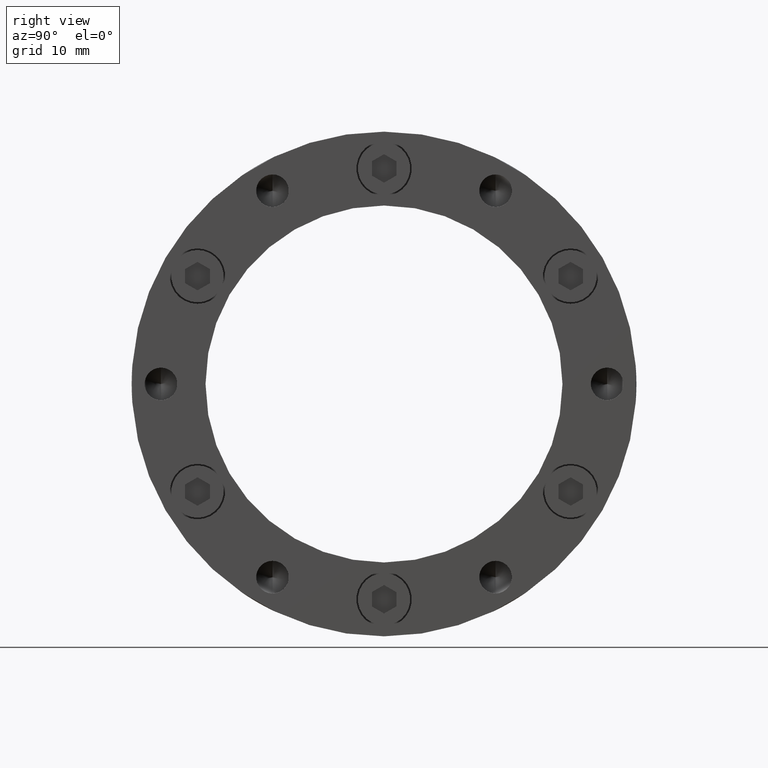
[diagram: clean part render]
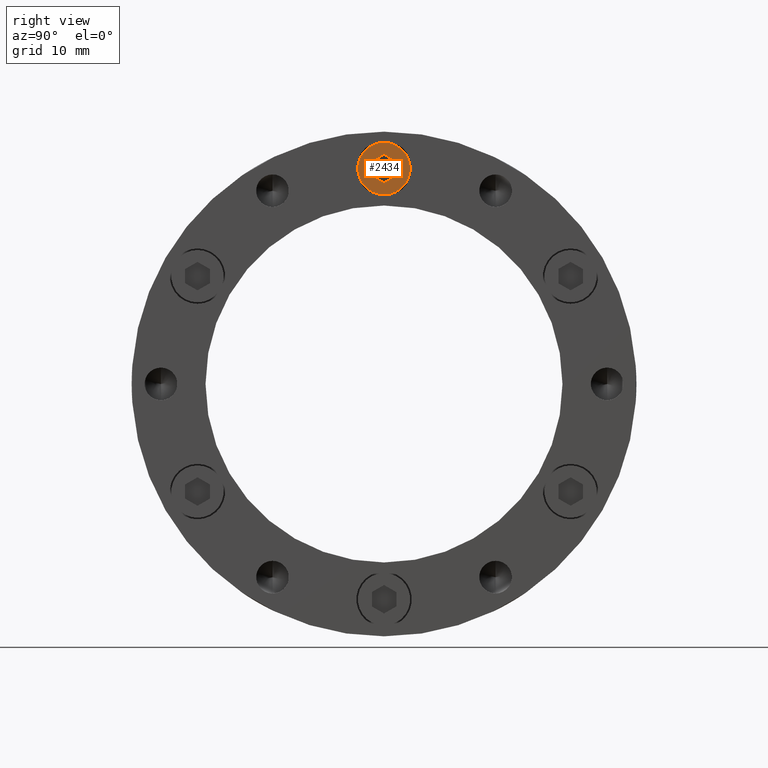
[diagram: same view with one face highlighted and labeled with its STEP entity id]
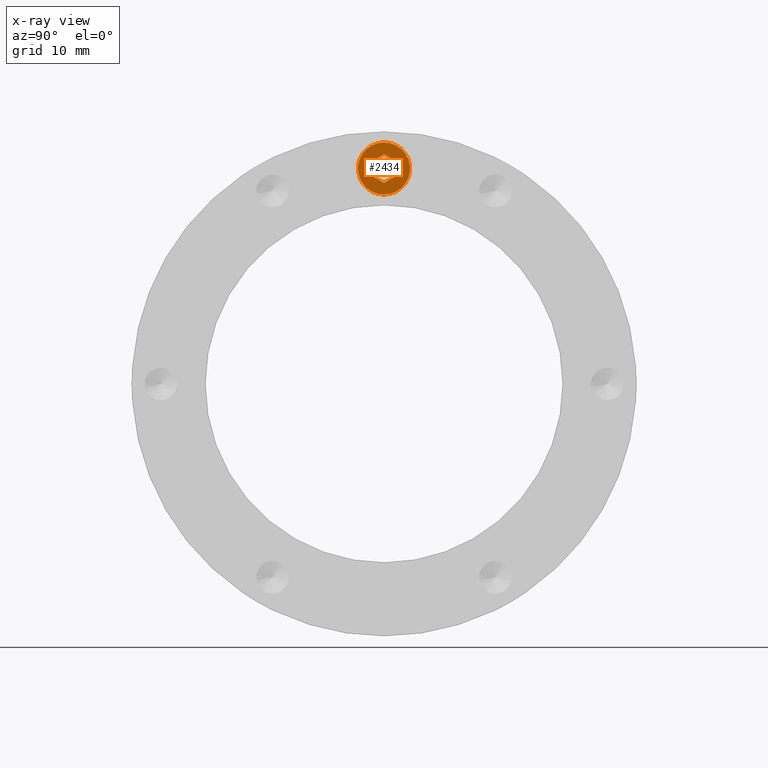
[diagram: x-ray of the same camera — body ghosted, the highlighted face saturated]
A machine part, right view. The second image highlights one B-rep face of the part: STEP entity #2434.
The next image is the same camera in x-ray: the body ghosted, the highlighted face saturated — about 0% of this face is hidden behind the body in this view.
In plain terms, the highlighted planar face has unit normal (1, 0, 0).
Its self-contained STEP definition (entity closure, byte-faithful):
#56 = ORIENTED_EDGE ( 'NONE', *, *, #2995, .F. ) ;
#97 = ORIENTED_EDGE ( 'NONE', *, *, #2938, .F. ) ;
#99 = ORIENTED_EDGE ( 'NONE', *, *, #3000, .F. ) ;
#140 = ORIENTED_EDGE ( 'NONE', *, *, #3002, .T. ) ;
#144 = ORIENTED_EDGE ( 'NONE', *, *, #2998, .T. ) ;
#152 = ORIENTED_EDGE ( 'NONE', *, *, #2991, .F. ) ;
#162 = ORIENTED_EDGE ( 'NONE', *, *, #2972, .F. ) ;
#165 = ORIENTED_EDGE ( 'NONE', *, *, #3004, .F. ) ;
#509 = CARTESIAN_POINT ( 'NONE',  ( 0.0000000000000000000, 5.000000000000000000, 0.0000000000000000000 ) ) ;
#512 = PLANE ( 'NONE',  #975 ) ;
#514 = DIRECTION ( 'NONE',  ( 0.0000000000000000000, 1.000000000000000000, 0.0000000000000000000 ) ) ;
#515 = DIRECTION ( 'NONE',  ( 0.0000000000000000000, -0.0000000000000000000, 1.000000000000000000 ) ) ;
#840 = EDGE_LOOP ( 'NONE', ( #152, #56, #165, #162, #97, #99 ) ) ;
#847 = EDGE_LOOP ( 'NONE', ( #144, #140 ) ) ;
#975 = AXIS2_PLACEMENT_3D ( 'NONE', #509, #514, #515 ) ;
#1086 = AXIS2_PLACEMENT_3D ( 'NONE', #1944, #1945, #1946 ) ;
#1087 = AXIS2_PLACEMENT_3D ( 'NONE', #1952, #1953, #1955 ) ;
#1737 = CARTESIAN_POINT ( 'NONE',  ( -2.000000000000000400, 5.000000000000000000, -1.154700538379251700 ) ) ;
#1772 = DIRECTION ( 'NONE',  ( 1.877893248421448800E-016, 0.0000000000000000000, 1.000000000000000000 ) ) ;
#1900 = DIRECTION ( 'NONE',  ( 0.8660254037844388200, 0.0000000000000000000, 0.4999999999999997200 ) ) ;
#1902 = CARTESIAN_POINT ( 'NONE',  ( -2.000000000000000000, 5.000000000000000000, 1.154700538379252100 ) ) ;
#1919 = DIRECTION ( 'NONE',  ( -0.8660254037844386000, 0.0000000000000000000, -0.5000000000000000000 ) ) ;
#1930 = CARTESIAN_POINT ( 'NONE',  ( 2.000000000000000000, 5.000000000000000000, -1.154700538379251700 ) ) ;
#1935 = DIRECTION ( 'NONE',  ( 0.0000000000000000000, 0.0000000000000000000, -1.000000000000000000 ) ) ;
#1936 = CARTESIAN_POINT ( 'NONE',  ( 2.000000000000000000, 5.000000000000000000, 1.154700538379251700 ) ) ;
#1942 = CARTESIAN_POINT ( 'NONE',  ( -2.121080424092026700E-016, 5.000000000000000000, -2.309401076758503400 ) ) ;
#1943 = DIRECTION ( 'NONE',  ( -0.8660254037844387100, 0.0000000000000000000, 0.4999999999999999400 ) ) ;
#1944 = CARTESIAN_POINT ( 'NONE',  ( 0.0000000000000000000, 5.000000000000000000, 0.0000000000000000000 ) ) ;
#1945 = DIRECTION ( 'NONE',  ( 0.0000000000000000000, 1.000000000000000000, 0.0000000000000000000 ) ) ;
#1946 = DIRECTION ( 'NONE',  ( 0.0000000000000000000, 0.0000000000000000000, 1.000000000000000000 ) ) ;
#1947 = DIRECTION ( 'NONE',  ( 0.8660254037844387100, 0.0000000000000000000, -0.4999999999999998900 ) ) ;
#1948 = CARTESIAN_POINT ( 'NONE',  ( -2.000000000000000000, 5.000000000000000000, 1.154700538379252100 ) ) ;
#1949 = CARTESIAN_POINT ( 'NONE',  ( -2.000000000000000400, 5.000000000000000000, -1.154700538379251700 ) ) ;
#1950 = CARTESIAN_POINT ( 'NONE',  ( 1.953255819227850700E-016, 5.000000000000000000, 2.309401076758502900 ) ) ;
#1952 = CARTESIAN_POINT ( 'NONE',  ( 0.0000000000000000000, 5.000000000000000000, 0.0000000000000000000 ) ) ;
#1953 = DIRECTION ( 'NONE',  ( 0.0000000000000000000, 1.000000000000000000, 0.0000000000000000000 ) ) ;
#1955 = DIRECTION ( 'NONE',  ( 0.0000000000000000000, 0.0000000000000000000, 1.000000000000000000 ) ) ;
#1962 = CARTESIAN_POINT ( 'NONE',  ( 2.000000000000000000, 5.000000000000000000, 1.154700538379251700 ) ) ;
#1964 = CARTESIAN_POINT ( 'NONE',  ( 1.953255819227850700E-016, 5.000000000000000000, 2.309401076758502900 ) ) ;
#1968 = CARTESIAN_POINT ( 'NONE',  ( -4.336808689942017700E-016, 5.000000000000000000, -2.309401076758503400 ) ) ;
#1969 = CARTESIAN_POINT ( 'NONE',  ( 2.000000000000000000, 5.000000000000000000, -1.154700538379251700 ) ) ;
#1971 = CARTESIAN_POINT ( 'NONE',  ( 0.0000000000000000000, 5.000000000000000000, -4.250000000000000000 ) ) ;
#1973 = CARTESIAN_POINT ( 'NONE',  ( 5.204748896376250700E-016, 5.000000000000000000, 4.250000000000000000 ) ) ;
#2434 = ADVANCED_FACE ( 'NONE', ( #2672, #2681 ), #512, .T. ) ;
#2672 = FACE_BOUND ( 'NONE', #840, .T. ) ;
#2681 = FACE_OUTER_BOUND ( 'NONE', #847, .T. ) ;
#2938 = EDGE_CURVE ( 'NONE', #3037, #3024, #3879, .T. ) ;
#2972 = EDGE_CURVE ( 'NONE', #3024, #3042, #3896, .T. ) ;
#2991 = EDGE_CURVE ( 'NONE', #3048, #3046, #3916, .T. ) ;
#2995 = EDGE_CURVE ( 'NONE', #3039, #3048, #3918, .T. ) ;
#2998 = EDGE_CURVE ( 'NONE', #3050, #3052, #3922, .T. ) ;
#3000 = EDGE_CURVE ( 'NONE', #3046, #3037, #3923, .T. ) ;
#3002 = EDGE_CURVE ( 'NONE', #3052, #3050, #3926, .T. ) ;
#3004 = EDGE_CURVE ( 'NONE', #3042, #3039, #3925, .T. ) ;
#3024 = VERTEX_POINT ( 'NONE', #1948 ) ;
#3037 = VERTEX_POINT ( 'NONE', #1949 ) ;
#3039 = VERTEX_POINT ( 'NONE', #1962 ) ;
#3042 = VERTEX_POINT ( 'NONE', #1964 ) ;
#3046 = VERTEX_POINT ( 'NONE', #1968 ) ;
#3048 = VERTEX_POINT ( 'NONE', #1969 ) ;
#3050 = VERTEX_POINT ( 'NONE', #1971 ) ;
#3052 = VERTEX_POINT ( 'NONE', #1973 ) ;
#3874 = VECTOR ( 'NONE', #1772, 1000.000000000000000 ) ;
#3879 = LINE ( 'NONE', #1737, #3874 ) ;
#3896 = LINE ( 'NONE', #1902, #3904 ) ;
#3904 = VECTOR ( 'NONE', #1900, 1000.000000000000100 ) ;
#3916 = LINE ( 'NONE', #1930, #3921 ) ;
#3918 = LINE ( 'NONE', #1936, #3924 ) ;
#3921 = VECTOR ( 'NONE', #1919, 1000.000000000000200 ) ;
#3922 = CIRCLE ( 'NONE', #1086, 4.250000000000000000 ) ;
#3923 = LINE ( 'NONE', #1942, #3927 ) ;
#3924 = VECTOR ( 'NONE', #1935, 1000.000000000000000 ) ;
#3925 = LINE ( 'NONE', #1950, #3930 ) ;
#3926 = CIRCLE ( 'NONE', #1087, 4.250000000000000000 ) ;
#3927 = VECTOR ( 'NONE', #1943, 1000.000000000000000 ) ;
#3930 = VECTOR ( 'NONE', #1947, 1000.000000000000000 ) ;